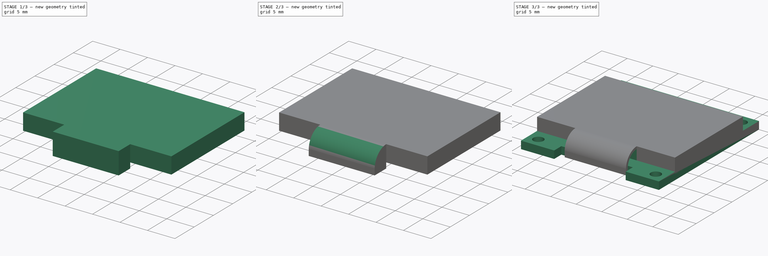
[diagram: build sequence overview — one tinted view per stage of 3, left to right]
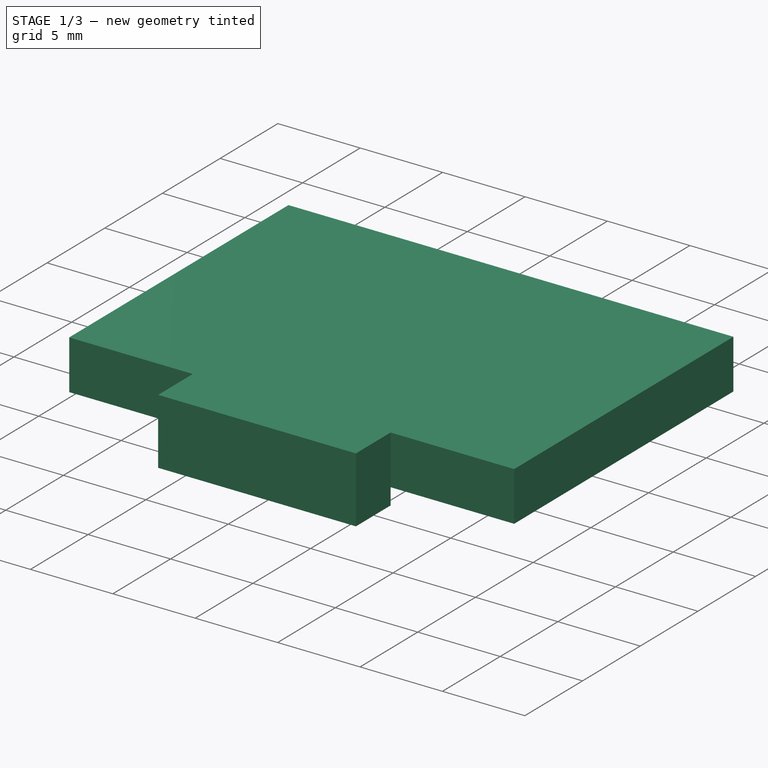
[diagram: stage 1 of 3 — iso view after this stage's code; geometry added in this stage tinted green]
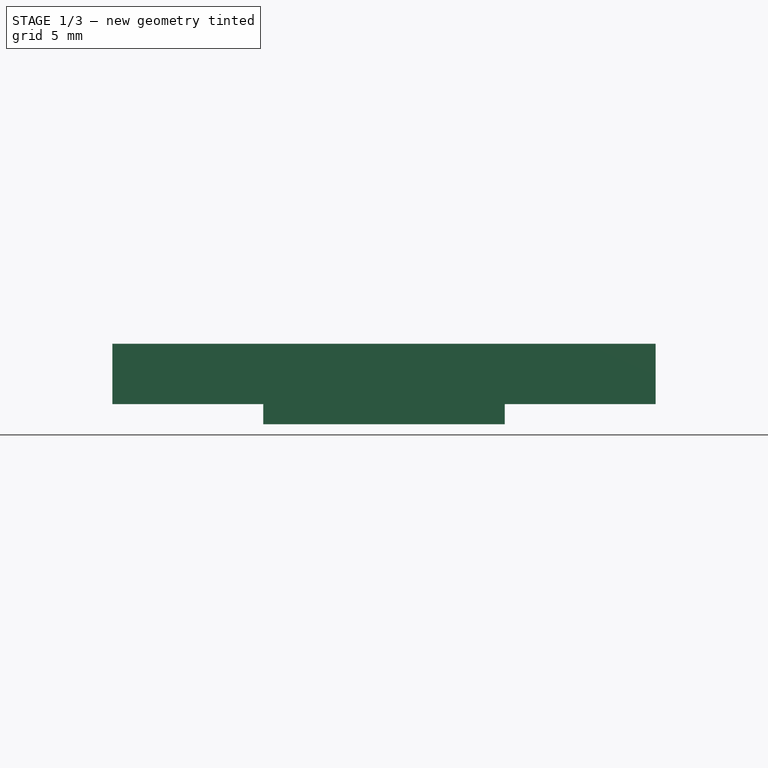
[diagram: stage 1 of 3 — front view after this stage's code; geometry added in this stage tinted green]
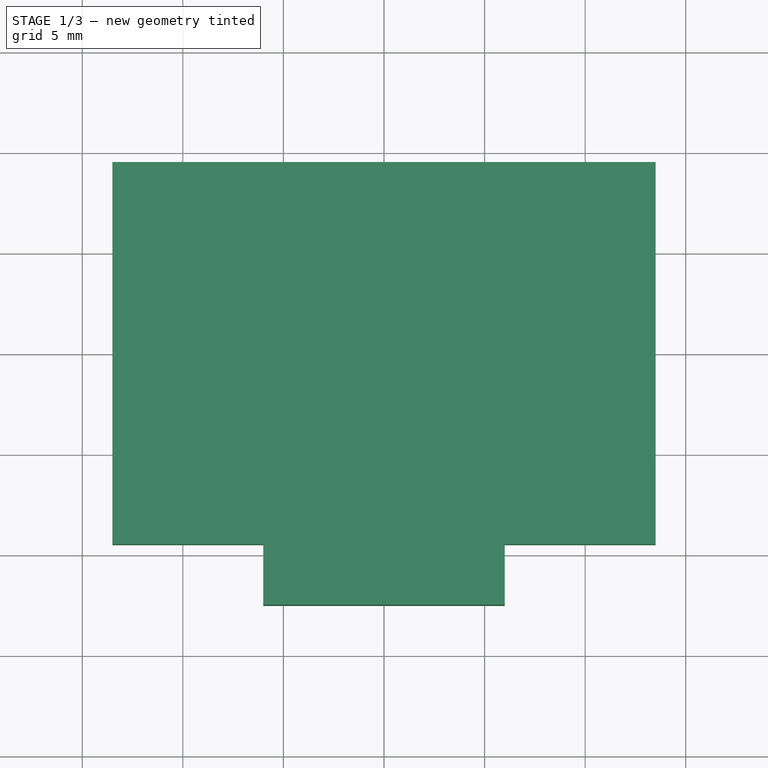
[diagram: stage 1 of 3 — top view after this stage's code; geometry added in this stage tinted green]
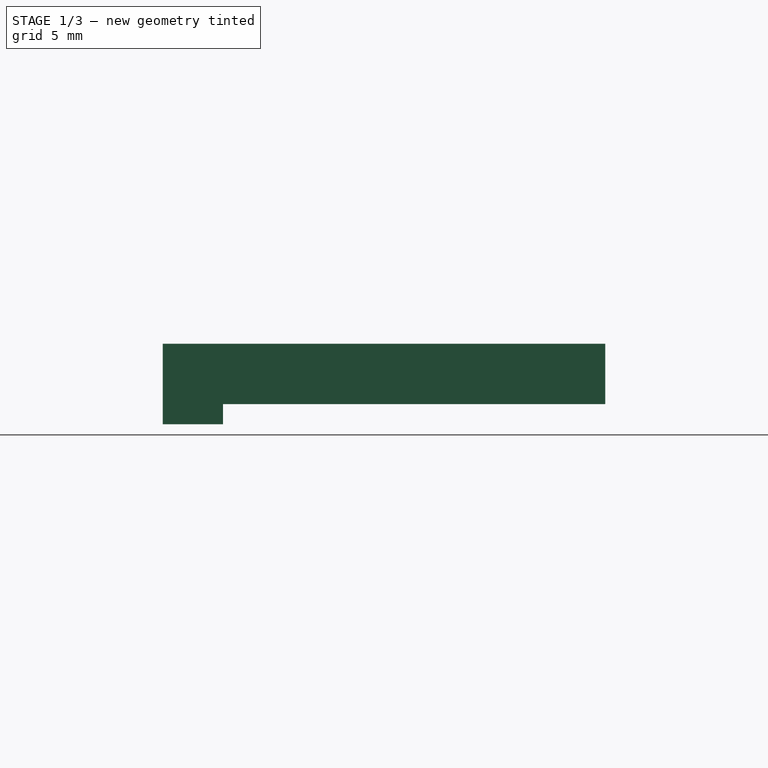
[diagram: stage 1 of 3 — right view after this stage's code; geometry added in this stage tinted green]
FCSTD DOCUMENT  (FreeCAD 0.19R24276 (Git))
Label: SSD1306_Assembly2
License: All rights reserved
LicenseURL: http://en.wikipedia.org/wiki/All_rights_reserved
objects: Sketcher::SketchObject×5, PartDesign::Pocket×3, PartDesign::Pad×2, PartDesign::Body×1, Part::Feature×1
note: 17 computed .brp shape members not serialized (recipe doc carries the construction recipe); baked Part::Feature solids carry a one-line shape summary decoded from their .brp

FEATURE [Sketcher::SketchObject] Sketch001
  FullyConstrained = true
  sketch-geometry (8):
    g0: LineSegment StartX=-13.5 StartY=9.5 StartZ=0 EndX=13.5 EndY=9.5 EndZ=0
    g1: LineSegment StartX=13.5 StartY=9.5 StartZ=0 EndX=13.5 EndY=-9.5 EndZ=0
    g2: LineSegment StartX=-13.5 StartY=-9.5 StartZ=0 EndX=-13.5 EndY=9.5 EndZ=0
    g3: LineSegment StartX=6 StartY=-9.5 StartZ=0 EndX=6 EndY=-12.5 EndZ=0
    g4: LineSegment StartX=6 StartY=-12.5 StartZ=0 EndX=-6 EndY=-12.5 EndZ=0
    g5: LineSegment StartX=-6 StartY=-12.5 StartZ=0 EndX=-6 EndY=-9.5 EndZ=0
    g6: LineSegment StartX=-13.5 StartY=-9.5 StartZ=0 EndX=-6 EndY=-9.5 EndZ=0
    g7: LineSegment StartX=6 StartY=-9.5 StartZ=0 EndX=13.5 EndY=-9.5 EndZ=0
  constraints (24):
    c: Coincident(g0,g1)
    c: Coincident(g2,g0)
    c: Horizontal(g0)
    c: Vertical(g1)
    c: Vertical(g2)
    c: DistanceY(g1,g1) = 19
    c: DistanceX(g0,g0) = 27
    c: DistanceX(g0,g-1) = 13.5
    c: DistanceY(g-1,g0) = 9.5
    c: Coincident(g3,g4)
    c: Coincident(g4,g5)
    c: Horizontal(g4)
    c: Vertical(g3)
    c: Vertical(g5)
    c: DistanceX(g4,g4) = 12
    c: DistanceX(g4,g-1) = 6
    c: DistanceY(g3,g3) = 3
    c: Coincident(g6,g2)
    c: Horizontal(g6)
    c: Coincident(g7,g1)
    c: Horizontal(g7)
    c: Equal(g5,g3)
    c: Coincident(g6,g5)
    c: Coincident(g3,g7)
FEATURE [PartDesign::Pad] Pad001
  Direction = (1,1,1)
  Length = 4
  Length2 = 100
  Profile = -> Sketch001
  Type = 0
FEATURE [Sketcher::SketchObject] Sketch004
  FullyConstrained = true
  MapMode = 5
  Placement = pos=(0,0,0) rot=(1,0,0;3.14159rad)
  Support = -> [Pad001]
  sketch-geometry (4):
    g0: LineSegment StartX=-13.5 StartY=9.5 StartZ=0 EndX=13.5 EndY=9.5 EndZ=0
    g1: LineSegment StartX=13.5 StartY=9.5 StartZ=0 EndX=13.5 EndY=-9.5 EndZ=0
    g2: LineSegment StartX=13.5 StartY=-9.5 StartZ=0 EndX=-13.5 EndY=-9.5 EndZ=0
    g3: LineSegment StartX=-13.5 StartY=-9.5 StartZ=0 EndX=-13.5 EndY=9.5 EndZ=0
  constraints (12):
    c: Coincident(g0,g1)
    c: Coincident(g1,g2)
    c: Coincident(g2,g3)
    c: Coincident(g3,g0)
    c: Horizontal(g0)
    c: Horizontal(g2)
    c: Vertical(g1)
    c: Vertical(g3)
    c: DistanceX(g0,g0) = 27
    c: DistanceY(g1,g1) = 19
    c: DistanceY(g1,g-1) = 9.5
    c: DistanceX(g0,g-1) = 13.5
FEATURE [PartDesign::Pocket] Pocket
  BaseFeature = -> Pad001
  Length = 1
  Length2 = 100
  Profile = -> Sketch004
  Type = 0
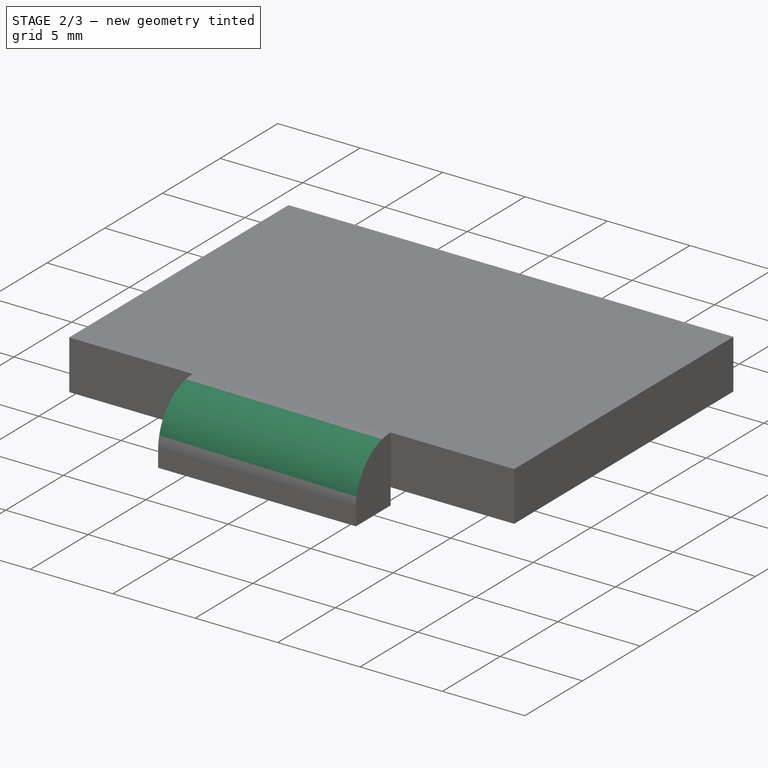
[diagram: stage 2 of 3 — iso view after this stage's code; geometry added in this stage tinted green]
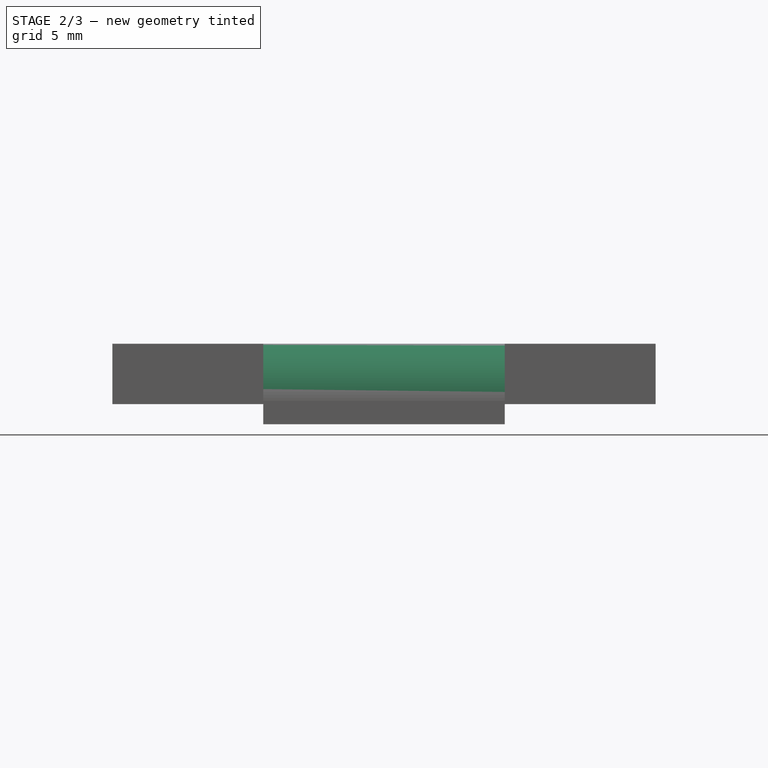
[diagram: stage 2 of 3 — front view after this stage's code; geometry added in this stage tinted green]
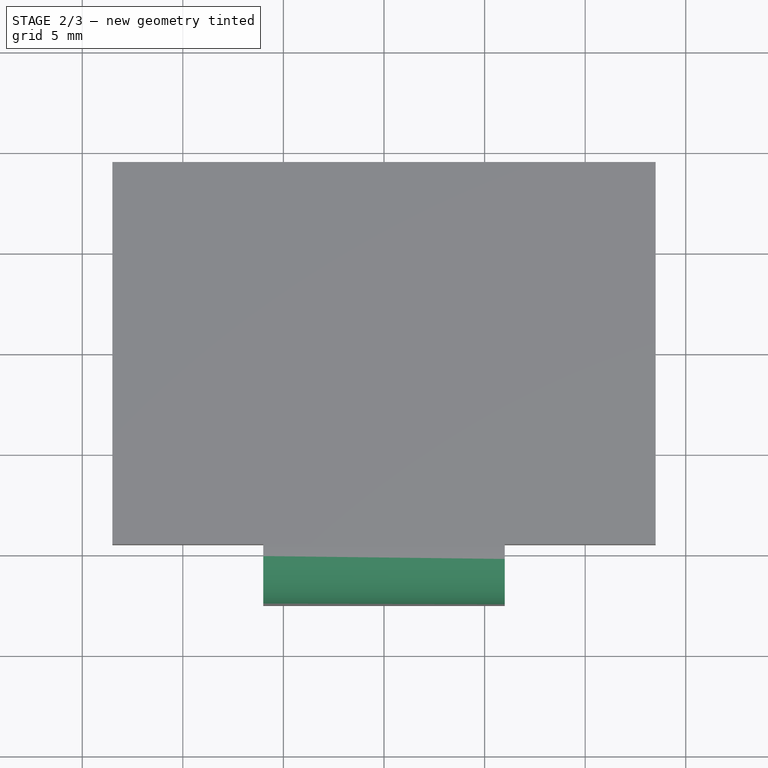
[diagram: stage 2 of 3 — top view after this stage's code; geometry added in this stage tinted green]
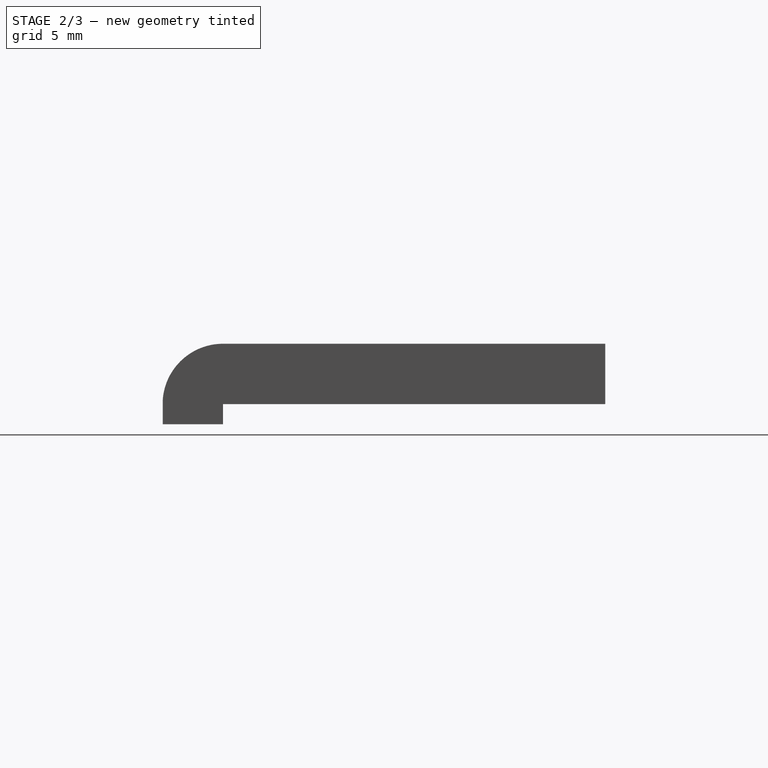
[diagram: stage 2 of 3 — right view after this stage's code; geometry added in this stage tinted green]
FEATURE [Sketcher::SketchObject] Sketch002
  FullyConstrained = false
  MapMode = 5
  Placement = pos=(-13.5,0,0) rot=(0.57735,-0.57735,-0.57735;2.0944rad)
  Support = -> [Pocket]
  sketch-geometry (5):
    g0: ArcOfCircle CenterX=9.50474 CenterY=1 CenterZ=0 NormalX=0 NormalY=0 NormalZ=1 AngleXU=0 Radius=3 StartAngle=1e-16 EndAngle=1.5708
    g1: LineSegment StartX=9.50474 StartY=4 StartZ=0 EndX=9.50474 EndY=5.57242 EndZ=0
    g2: LineSegment StartX=9.50474 StartY=5.57242 StartZ=0 EndX=13.0332 EndY=5.57242 EndZ=0
    g3: LineSegment StartX=13.0332 StartY=5.57242 StartZ=0 EndX=13.0332 EndY=1 EndZ=0
    g4: LineSegment StartX=13.0332 StartY=1 StartZ=0 EndX=12.5047 EndY=1 EndZ=0
  constraints (13):
    c: Angle(g0) = 1.5708
    c: DistanceX(g0,g0) = 0
    c: DistanceY(g-1,g0) = 4
    c: DistanceY(g-1,g0) = 1
    c: Coincident(g1,g0)
    c: Vertical(g1)
    c: Coincident(g2,g1)
    c: Horizontal(g2)
    c: Coincident(g3,g2)
    c: Vertical(g3)
    c: Coincident(g4,g3)
    c: Coincident(g4,g0)
    c: Horizontal(g4)
FEATURE [PartDesign::Pocket] Pocket001
  BaseFeature = -> Pocket
  Length = 27
  Length2 = 100
  Profile = -> Sketch002
  Type = 0
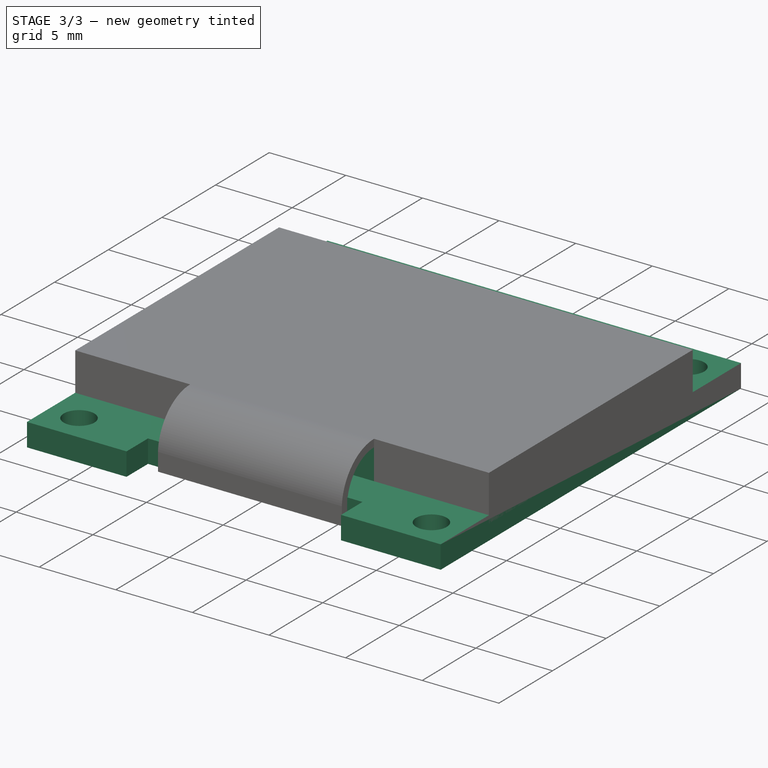
[diagram: stage 3 of 3 — iso view after this stage's code; geometry added in this stage tinted green]
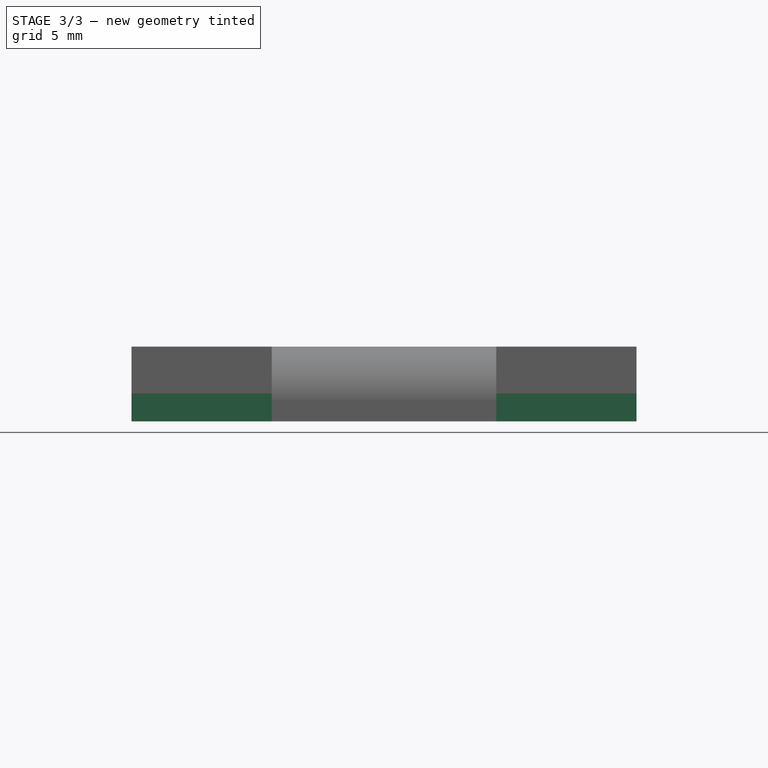
[diagram: stage 3 of 3 — front view after this stage's code; geometry added in this stage tinted green]
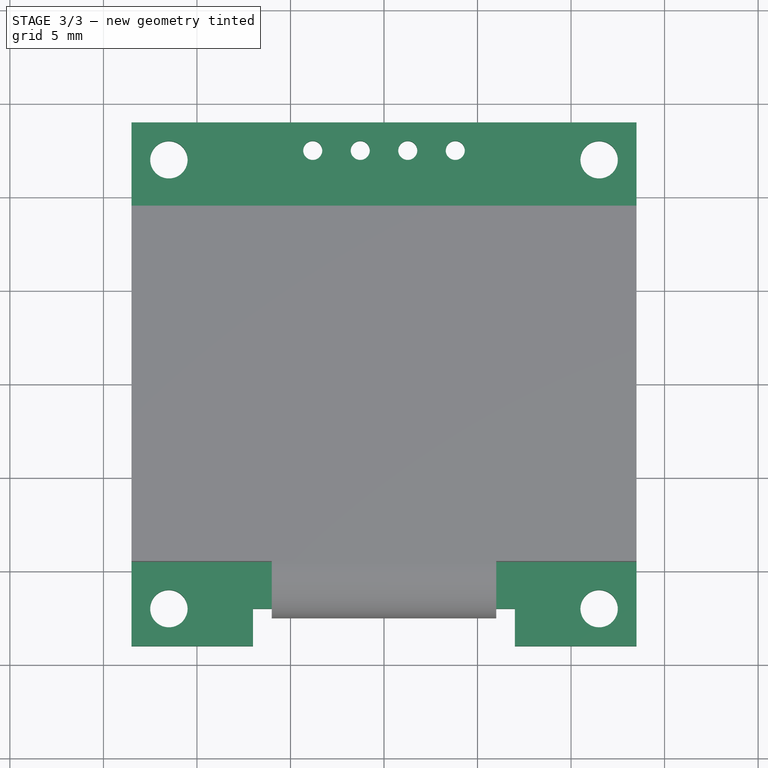
[diagram: stage 3 of 3 — top view after this stage's code; geometry added in this stage tinted green]
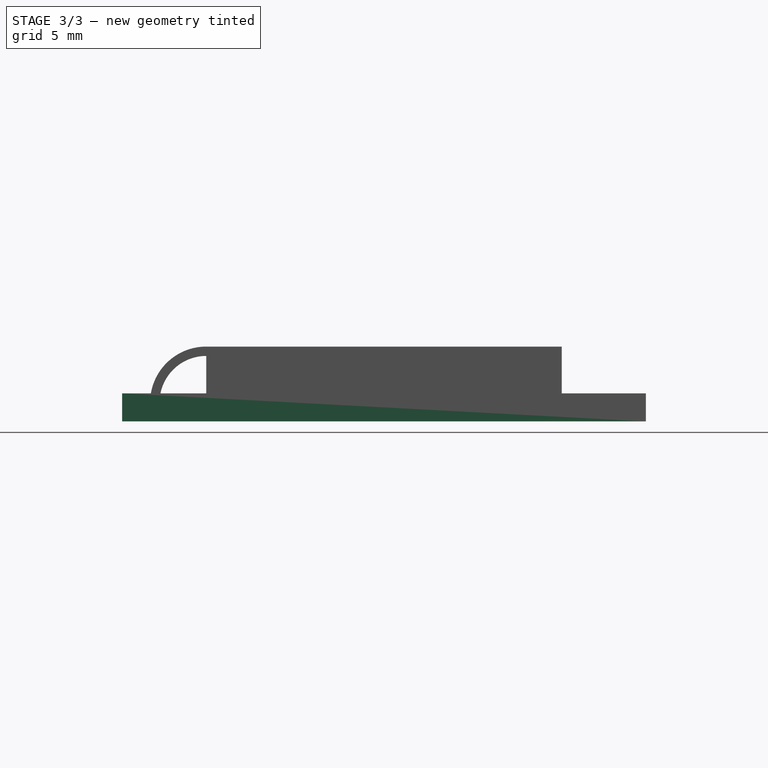
[diagram: stage 3 of 3 — right view after this stage's code; geometry added in this stage tinted green]
FEATURE [Sketcher::SketchObject] Sketch
  FullyConstrained = true
  MapMode = 5
  Support = -> [XY_Plane]
  sketch-geometry (16):
    g0: LineSegment StartX=-13.5 StartY=14 StartZ=0 EndX=13.5 EndY=14 EndZ=0
    g1: LineSegment StartX=13.5 StartY=14 StartZ=0 EndX=13.5 EndY=-14 EndZ=0
    g2: LineSegment StartX=-13.5 StartY=-14 StartZ=0 EndX=-13.5 EndY=14 EndZ=0
    g3: Circle CenterX=-11.5 CenterY=12 CenterZ=0 NormalX=0 NormalY=0 NormalZ=1 AngleXU=0 Radius=1
    g4: Circle CenterX=11.5 CenterY=12 CenterZ=0 NormalX=0 NormalY=0 NormalZ=1 AngleXU=0 Radius=1
    g5: Circle CenterX=-11.5 CenterY=-12 CenterZ=0 NormalX=0 NormalY=0 NormalZ=1 AngleXU=0 Radius=1
    g6: Circle CenterX=11.5 CenterY=-12 CenterZ=0 NormalX=0 NormalY=0 NormalZ=1 AngleXU=0 Radius=1
    g7: Circle CenterX=-3.81 CenterY=12.5 CenterZ=0 NormalX=0 NormalY=0 NormalZ=1 AngleXU=0 Radius=0.51
    g8: Circle CenterX=-1.27 CenterY=12.5 CenterZ=0 NormalX=0 NormalY=0 NormalZ=1 AngleXU=0 Radius=0.51
    g9: Circle CenterX=1.27 CenterY=12.5 CenterZ=0 NormalX=0 NormalY=0 NormalZ=1 AngleXU=0 Radius=0.51
    g10: Circle CenterX=3.81 CenterY=12.5 CenterZ=0 NormalX=0 NormalY=0 NormalZ=1 AngleXU=0 Radius=0.51
    g11: LineSegment StartX=7 StartY=-14 StartZ=0 EndX=7 EndY=-12 EndZ=0
    g12: LineSegment StartX=7 StartY=-12 StartZ=0 EndX=-7 EndY=-12 EndZ=0
    g13: LineSegment StartX=-7 StartY=-12 StartZ=0 EndX=-7 EndY=-14 EndZ=0
    g14: LineSegment StartX=-13.5 StartY=-14 StartZ=0 EndX=-7 EndY=-14 EndZ=0
    g15: LineSegment StartX=7 StartY=-14 StartZ=0 EndX=13.5 EndY=-14 EndZ=0
  constraints (48):
    c: Coincident(g0,g1)
    c: Coincident(g2,g0)
    c: Horizontal(g0)
    c: Vertical(g1)
    c: Vertical(g2)
    c: DistanceX(g0,g0) = 27
    c: DistanceY(g1,g1) = 28
    c: DistanceX(g0,g-1) = 13.5
    c: DistanceY(g-1,g0) = 14
    c: Diameter(g6) = 2
    c: Equal(g6,g5)
    c: Equal(g6,g3)
    c: Equal(g6,g4)
    c: DistanceY(g3,g0) = 2
    c: DistanceX(g0,g3) = 2
    c: DistanceY(g4,g0) = 2
    c: DistanceX(g4,g0) = 2
    c: DistanceX(g6,g1) = 2
    c: DistanceY(g1,g6) = 2
    c: DistanceY(g2,g5) = 2
    c: DistanceX(g2,g5) = 2
    c: Horizontal(g7,g8)
    c: Horizontal(g8,g9)
    c: Horizontal(g9,g10)
    c: DistanceX(g7,g8) = 2.54
    c: DistanceX(g8,g9) = 2.54
    c: DistanceX(g9,g10) = 2.54
    c: Diameter(g7) = 1.02
    c: Equal(g7,g8)
    c: Equal(g7,g9)
    c: Equal(g7,g10)
    c: DistanceX(g8,g-1) = 1.27
    c: DistanceY(g7,g0) = 1.5
    c: Coincident(g11,g12)
    c: Coincident(g12,g13)
    c: Horizontal(g12)
    c: Vertical(g11)
    c: Vertical(g13)
    c: Coincident(g14,g2)
    c: Coincident(g14,g13)
    c: Horizontal(g14)
    c: Coincident(g15,g11)
    c: Coincident(g15,g1)
    c: Horizontal(g15)
    c: Equal(g15,g14)
    c: DistanceY(g13,g13) = 2
    c: DistanceX(g12,g12) = 14
    c: Equal(g13,g11)
FEATURE [PartDesign::Pad] Pad
  Direction = (1,1,1)
  Length = 1.5
  Length2 = 100
  Profile = -> Sketch
  Type = 0
FEATURE [Sketcher::SketchObject] Sketch003
  FullyConstrained = false
  MapMode = 5
  Placement = pos=(-13.5,0,0) rot=(0.57735,-0.57735,-0.57735;2.0944rad)
  Support = -> [Pocket001]
  sketch-geometry (7):
    g0: ArcOfCircle CenterX=9.50152 CenterY=1 CenterZ=0 NormalX=0 NormalY=0 NormalZ=1 AngleXU=0 Radius=2.5 StartAngle=1e-16 EndAngle=1.5708
    g1: LineSegment StartX=10.1611 StartY=-0.269266 StartZ=0 EndX=12.0015 EndY=-0.269266 EndZ=0
    g2: LineSegment StartX=12.0015 StartY=-0.269266 StartZ=0 EndX=12.0015 EndY=1 EndZ=0
    g3: LineSegment StartX=9.50152 StartY=1 StartZ=0 EndX=9.32419 EndY=1 EndZ=0
    g4: LineSegment StartX=9.32419 StartY=1 StartZ=0 EndX=9.32419 EndY=-0.269266 EndZ=0
    g5: LineSegment StartX=9.32419 StartY=-0.269266 StartZ=0 EndX=10.1611 EndY=-0.269266 EndZ=0
    g6: LineSegment StartX=9.50152 StartY=3.5 StartZ=0 EndX=9.50152 EndY=1 EndZ=0
  constraints (17):
    c: Angle(g0) = 1.5708
    c: DistanceX(g0,g0) = 0
    c: DistanceY(g-1,g0) = 3.5
    c: DistanceY(g-1,g0) = 1
    c: Horizontal(g1)
    c: Coincident(g2,g1)
    c: Coincident(g2,g0)
    c: Vertical(g2)
    c: Coincident(g3,g0)
    c: Horizontal(g3)
    c: Coincident(g4,g3)
    c: Vertical(g4)
    c: Coincident(g5,g4)
    c: Coincident(g5,g1)
    c: Horizontal(g5)
    c: Coincident(g6,g0)
    c: Coincident(g6,g0)
FEATURE [PartDesign::Pocket] Pocket002
  BaseFeature = -> Pocket001
  Length = 27
  Length2 = 100
  Profile = -> Sketch003
  Type = 0
FEATURE [PartDesign::Body] Body
  Group = -> [Sketch001,Pad001,Sketch004,Pocket,Sketch002,Pocket001,Sketch003,Pocket002]
  Origin = -> Origin
  Placement = pos=(0,0,0.5) rot=(0,0,1;0rad)
  Tip = -> Pocket002
FEATURE [Part::Feature] Shape001  label="Pad_sp"
  shape: bbox 27 x 28 x 4.5 mm, 33 faces (baked)
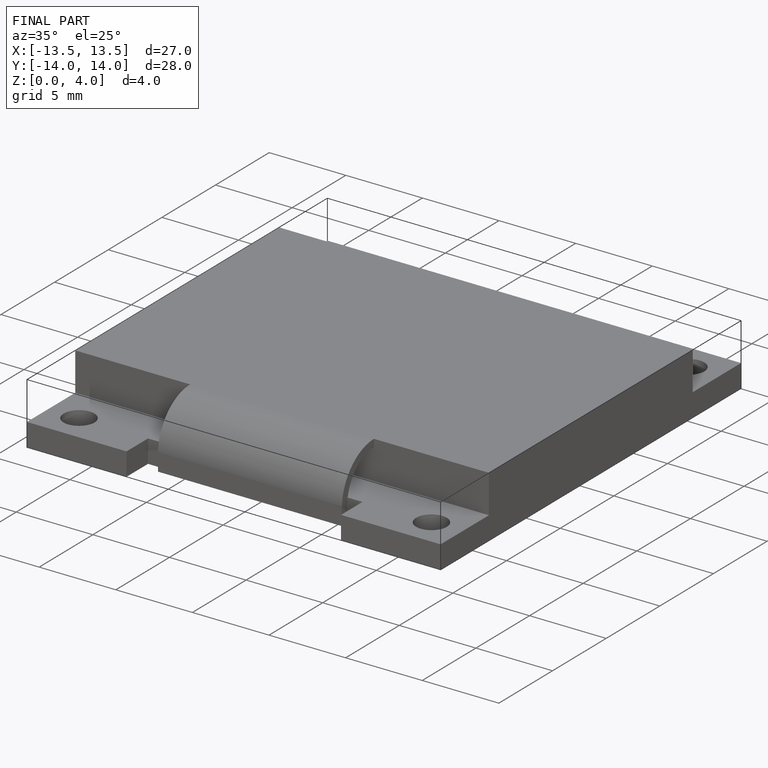
[diagram: finished part — iso view with bounding-box wireframe]
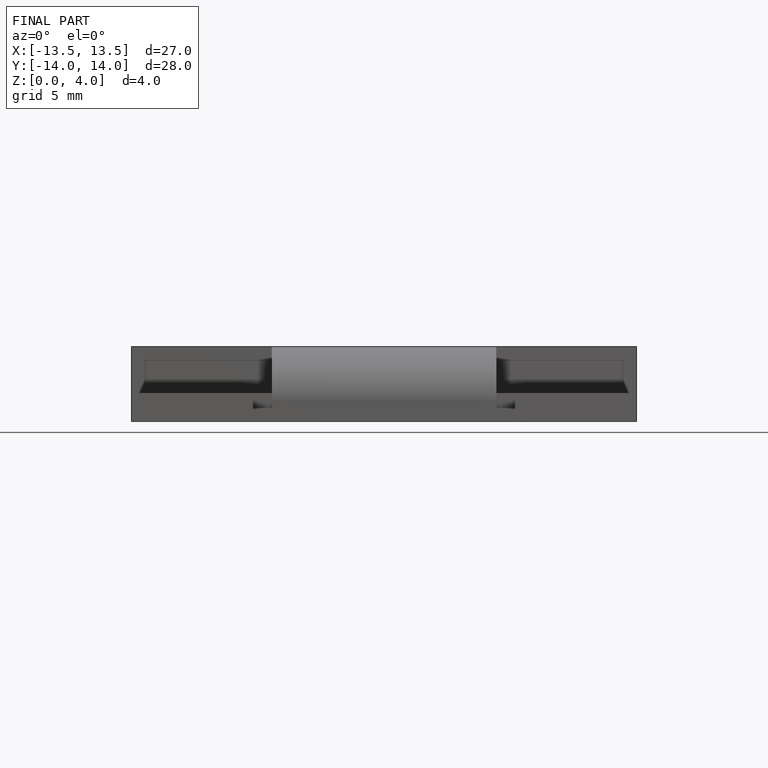
[diagram: finished part — front view with bounding-box wireframe]
